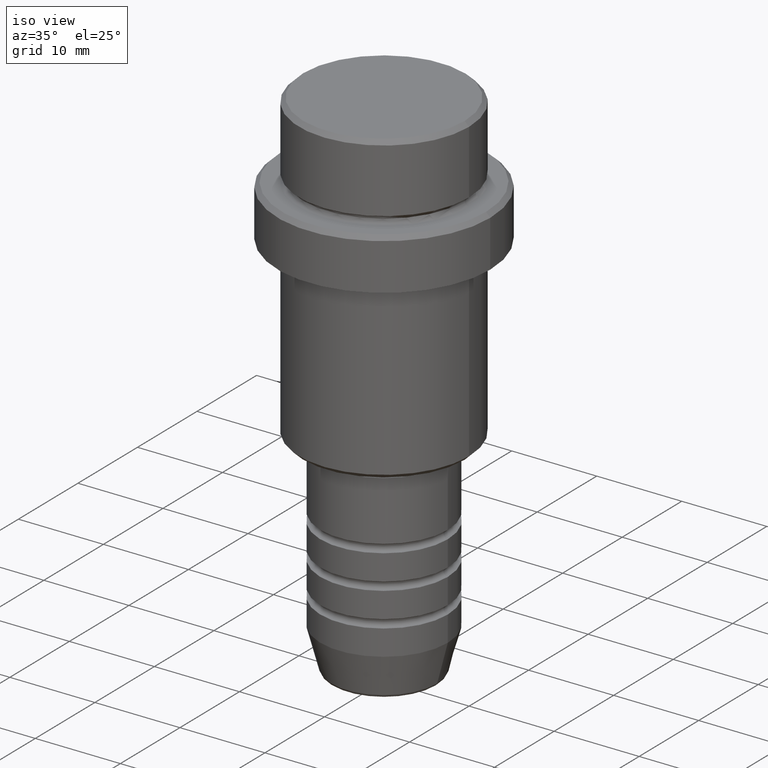
[diagram: clean part render]
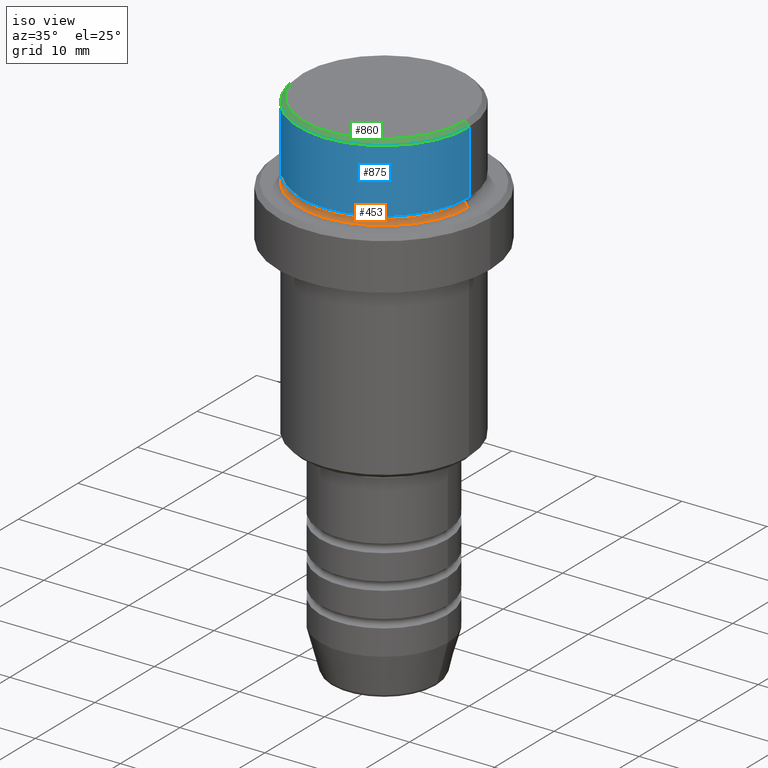
[diagram: same view with three faces highlighted in distinct colors, each labeled with its STEP entity id]
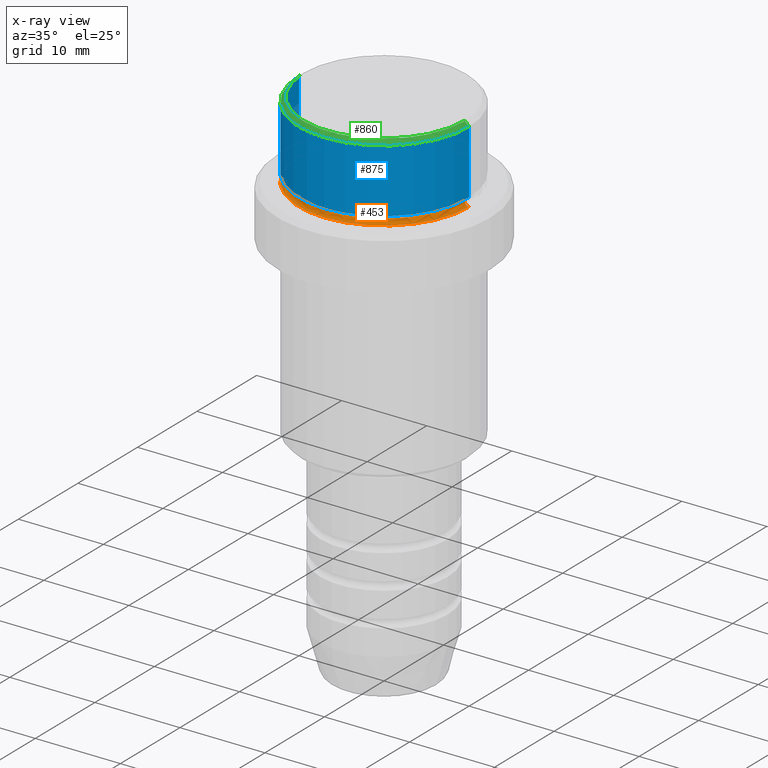
[diagram: x-ray of the same camera — body ghosted, the three highlighted faces saturated]
A machine part, iso view with three faces highlighted in distinct colors.
The next image is the same camera in x-ray (body ghosted, the three faces saturated) — at least one of them is partly hidden behind the body in this view.
Their STEP definitions:

[orange] entity #453 — the highlighted toroidal blend (fillet) surface has major radius 10 mm and minor (blend) radius 0.5 mm.
#1 = CARTESIAN_POINT ( 'NONE',  ( 9.499999999999994671, 0.000000000000000000, -8.500000000000000000 ) ) ;
#8 = DIRECTION ( 'NONE',  ( -0.000000000000000000, -0.000000000000000000, 1.000000000000000000 ) ) ;
#26 = ORIENTED_EDGE ( 'NONE', *, *, #714, .F. ) ;
#55 = CIRCLE ( 'NONE', #1041, 0.5000000000000004441 ) ;
#83 = DIRECTION ( 'NONE',  ( 1.224646799147353207E-16, 1.000000000000000000, 0.000000000000000000 ) ) ;
#88 = FACE_OUTER_BOUND ( 'NONE', #518, .T. ) ;
#105 = CARTESIAN_POINT ( 'NONE',  ( 0.000000000000000000, 0.000000000000000000, -8.500000000000000000 ) ) ;
#161 = CARTESIAN_POINT ( 'NONE',  ( -9.999999999999994671, 1.224646799147352665E-15, -9.000000000000001776 ) ) ;
#181 = CIRCLE ( 'NONE', #1089, 9.999999999999994671 ) ;
#213 = VERTEX_POINT ( 'NONE', #569 ) ;
#266 = VERTEX_POINT ( 'NONE', #161 ) ;
#283 = CARTESIAN_POINT ( 'NONE',  ( -9.999999999999994671, 1.224646799147352665E-15, -8.500000000000000000 ) ) ;
#337 = ORIENTED_EDGE ( 'NONE', *, *, #1265, .F. ) ;
#346 = DIRECTION ( 'NONE',  ( 0.000000000000000000, 0.000000000000000000, -1.000000000000000000 ) ) ;
#384 = ORIENTED_EDGE ( 'NONE', *, *, #1148, .F. ) ;
#453 = ADVANCED_FACE ( 'NONE', ( #88 ), #1320, .F. ) ;
#518 = EDGE_LOOP ( 'NONE', ( #384, #1321, #26, #337 ) ) ;
#521 = CARTESIAN_POINT ( 'NONE',  ( 9.999999999999994671, 0.000000000000000000, -8.500000000000000000 ) ) ;
#569 = CARTESIAN_POINT ( 'NONE',  ( 9.999999999999994671, 0.000000000000000000, -9.000000000000001776 ) ) ;
#586 = CARTESIAN_POINT ( 'NONE',  ( 0.000000000000000000, 0.000000000000000000, -9.000000000000001776 ) ) ;
#600 = DIRECTION ( 'NONE',  ( 1.000000000000000000, 0.000000000000000000, 0.000000000000000000 ) ) ;
#653 = VERTEX_POINT ( 'NONE', #795 ) ;
#713 = CARTESIAN_POINT ( 'NONE',  ( 0.000000000000000000, 0.000000000000000000, -8.500000000000000000 ) ) ;
#714 = EDGE_CURVE ( 'NONE', #213, #266, #181, .T. ) ;
#743 = DIRECTION ( 'NONE',  ( 0.000000000000000000, 0.000000000000000000, -1.000000000000000000 ) ) ;
#768 = DIRECTION ( 'NONE',  ( 1.000000000000000000, 0.000000000000000000, 0.000000000000000000 ) ) ;
#795 = CARTESIAN_POINT ( 'NONE',  ( -9.499999999999994671, 1.194030629168668681E-15, -8.500000000000000000 ) ) ;
#933 = EDGE_CURVE ( 'NONE', #653, #266, #55, .T. ) ;
#964 = VERTEX_POINT ( 'NONE', #1 ) ;
#978 = AXIS2_PLACEMENT_3D ( 'NONE', #105, #8, #768 ) ;
#1041 = AXIS2_PLACEMENT_3D ( 'NONE', #283, #83, #1279 ) ;
#1089 = AXIS2_PLACEMENT_3D ( 'NONE', #586, #346, #1347 ) ;
#1148 = EDGE_CURVE ( 'NONE', #653, #964, #1177, .T. ) ;
#1174 = CIRCLE ( 'NONE', #1289, 0.5000000000000004441 ) ;
#1177 = CIRCLE ( 'NONE', #1353, 9.499999999999994671 ) ;
#1178 = DIRECTION ( 'NONE',  ( 0.000000000000000000, -1.000000000000000000, 0.000000000000000000 ) ) ;
#1265 = EDGE_CURVE ( 'NONE', #964, #213, #1174, .T. ) ;
#1279 = DIRECTION ( 'NONE',  ( -1.000000000000000000, 1.224646799147353454E-16, 0.000000000000000000 ) ) ;
#1289 = AXIS2_PLACEMENT_3D ( 'NONE', #521, #1178, #743 ) ;
#1320 = TOROIDAL_SURFACE ( 'NONE', #978, 9.999999999999994671, 0.5000000000000000000 ) ;
#1321 = ORIENTED_EDGE ( 'NONE', *, *, #933, .T. ) ;
#1347 = DIRECTION ( 'NONE',  ( 1.000000000000000000, 0.000000000000000000, 0.000000000000000000 ) ) ;
#1353 = AXIS2_PLACEMENT_3D ( 'NONE', #713, #1367, #600 ) ;
#1367 = DIRECTION ( 'NONE',  ( -0.000000000000000000, -0.000000000000000000, 1.000000000000000000 ) ) ;

[blue] entity #875 — the highlighted cylindrical surface (partial cylindrical patch) has radius 10 mm, axis along (-0, -0, 1).
#93 = ORIENTED_EDGE ( 'NONE', *, *, #694, .T. ) ;
#95 = VERTEX_POINT ( 'NONE', #473 ) ;
#112 = DIRECTION ( 'NONE',  ( 0.000000000000000000, 0.000000000000000000, -1.000000000000000000 ) ) ;
#123 = EDGE_CURVE ( 'NONE', #1313, #490, #1252, .T. ) ;
#135 = EDGE_CURVE ( 'NONE', #490, #1121, #919, .T. ) ;
#136 = DIRECTION ( 'NONE',  ( -0.000000000000000000, -0.000000000000000000, 1.000000000000000000 ) ) ;
#164 = ORIENTED_EDGE ( 'NONE', *, *, #123, .T. ) ;
#194 = DIRECTION ( 'NONE',  ( -0.000000000000000000, -0.000000000000000000, 1.000000000000000000 ) ) ;
#473 = CARTESIAN_POINT ( 'NONE',  ( -9.999999999999998224, 1.224646799147353059E-15, -0.5000000000000038858 ) ) ;
#490 = VERTEX_POINT ( 'NONE', #525 ) ;
#493 = ORIENTED_EDGE ( 'NONE', *, *, #135, .T. ) ;
#525 = CARTESIAN_POINT ( 'NONE',  ( 9.999999999999998224, 0.000000000000000000, -7.999999999999998224 ) ) ;
#579 = CARTESIAN_POINT ( 'NONE',  ( 0.000000000000000000, 0.000000000000000000, -7.999999999999998224 ) ) ;
#624 = EDGE_LOOP ( 'NONE', ( #1282, #164, #493, #93 ) ) ;
#635 = VECTOR ( 'NONE', #811, 1000.000000000000000 ) ;
#688 = DIRECTION ( 'NONE',  ( -0.000000000000000000, -0.000000000000000000, 1.000000000000000000 ) ) ;
#694 = EDGE_CURVE ( 'NONE', #1121, #95, #995, .T. ) ;
#773 = FACE_OUTER_BOUND ( 'NONE', #624, .T. ) ;
#800 = AXIS2_PLACEMENT_3D ( 'NONE', #579, #688, #817 ) ;
#809 = LINE ( 'NONE', #1239, #1042 ) ;
#811 = DIRECTION ( 'NONE',  ( -0.000000000000000000, -0.000000000000000000, 1.000000000000000000 ) ) ;
#817 = DIRECTION ( 'NONE',  ( 1.000000000000000000, 0.000000000000000000, 0.000000000000000000 ) ) ;
#874 = DIRECTION ( 'NONE',  ( 1.000000000000000000, 0.000000000000000000, 0.000000000000000000 ) ) ;
#875 = ADVANCED_FACE ( 'NONE', ( #773 ), #1194, .T. ) ;
#898 = CARTESIAN_POINT ( 'NONE',  ( 0.000000000000000000, 0.000000000000000000, -0.5000000000000038858 ) ) ;
#919 = LINE ( 'NONE', #1339, #635 ) ;
#995 = CIRCLE ( 'NONE', #1153, 9.999999999999998224 ) ;
#1020 = AXIS2_PLACEMENT_3D ( 'NONE', #1200, #194, #874 ) ;
#1038 = EDGE_CURVE ( 'NONE', #1313, #95, #809, .T. ) ;
#1042 = VECTOR ( 'NONE', #136, 1000.000000000000000 ) ;
#1054 = CARTESIAN_POINT ( 'NONE',  ( -9.999999999999998224, 1.224646799147353059E-15, -7.999999999999998224 ) ) ;
#1121 = VERTEX_POINT ( 'NONE', #1136 ) ;
#1136 = CARTESIAN_POINT ( 'NONE',  ( 9.999999999999998224, 0.000000000000000000, -0.5000000000000038858 ) ) ;
#1153 = AXIS2_PLACEMENT_3D ( 'NONE', #898, #112, #1337 ) ;
#1194 = CYLINDRICAL_SURFACE ( 'NONE', #1020, 9.999999999999998224 ) ;
#1200 = CARTESIAN_POINT ( 'NONE',  ( 0.000000000000000000, 0.000000000000000000, 0.000000000000000000 ) ) ;
#1239 = CARTESIAN_POINT ( 'NONE',  ( -9.999999999999998224, 1.224646799147353059E-15, 0.000000000000000000 ) ) ;
#1252 = CIRCLE ( 'NONE', #800, 9.999999999999998224 ) ;
#1282 = ORIENTED_EDGE ( 'NONE', *, *, #1038, .F. ) ;
#1313 = VERTEX_POINT ( 'NONE', #1054 ) ;
#1337 = DIRECTION ( 'NONE',  ( 1.000000000000000000, 0.000000000000000000, 0.000000000000000000 ) ) ;
#1339 = CARTESIAN_POINT ( 'NONE',  ( 9.999999999999998224, 0.000000000000000000, 0.000000000000000000 ) ) ;

[green] entity #860 — the highlighted conical surface has half-angle 45 deg.
#52 = DIRECTION ( 'NONE',  ( 1.000000000000000000, 0.000000000000000000, 0.000000000000000000 ) ) ;
#74 = EDGE_CURVE ( 'NONE', #1268, #95, #645, .T. ) ;
#90 = CARTESIAN_POINT ( 'NONE',  ( -9.499999999999994671, 0.000000000000000000, 0.000000000000000000 ) ) ;
#95 = VERTEX_POINT ( 'NONE', #473 ) ;
#112 = DIRECTION ( 'NONE',  ( 0.000000000000000000, 0.000000000000000000, -1.000000000000000000 ) ) ;
#148 = CARTESIAN_POINT ( 'NONE',  ( 9.499999999999994671, 1.194030629168669075E-15, 0.000000000000000000 ) ) ;
#172 = DIRECTION ( 'NONE',  ( -1.000000000000000000, 0.000000000000000000, 0.000000000000000000 ) ) ;
#226 = AXIS2_PLACEMENT_3D ( 'NONE', #469, #838, #52 ) ;
#274 = ORIENTED_EDGE ( 'NONE', *, *, #446, .F. ) ;
#437 = CONICAL_SURFACE ( 'NONE', #630, 9.499999999999994671, 0.7853981633974482790 ) ;
#440 = VECTOR ( 'NONE', #526, 1000.000000000000114 ) ;
#446 = EDGE_CURVE ( 'NONE', #1139, #1121, #761, .T. ) ;
#469 = CARTESIAN_POINT ( 'NONE',  ( 0.000000000000000000, 0.000000000000000000, 0.000000000000000000 ) ) ;
#473 = CARTESIAN_POINT ( 'NONE',  ( -9.999999999999998224, 1.224646799147353059E-15, -0.5000000000000038858 ) ) ;
#509 = VECTOR ( 'NONE', #968, 1000.000000000000114 ) ;
#526 = DIRECTION ( 'NONE',  ( -0.7071067811865474617, 0.000000000000000000, -0.7071067811865474617 ) ) ;
#543 = ORIENTED_EDGE ( 'NONE', *, *, #74, .T. ) ;
#551 = CARTESIAN_POINT ( 'NONE',  ( 9.499999999999994671, 1.163414459189984894E-15, 0.000000000000000000 ) ) ;
#605 = FACE_OUTER_BOUND ( 'NONE', #870, .T. ) ;
#613 = DIRECTION ( 'NONE',  ( 0.000000000000000000, 0.000000000000000000, -1.000000000000000000 ) ) ;
#620 = CARTESIAN_POINT ( 'NONE',  ( 0.000000000000000000, 0.000000000000000000, 0.000000000000000000 ) ) ;
#630 = AXIS2_PLACEMENT_3D ( 'NONE', #620, #613, #172 ) ;
#645 = LINE ( 'NONE', #90, #440 ) ;
#694 = EDGE_CURVE ( 'NONE', #1121, #95, #995, .T. ) ;
#761 = LINE ( 'NONE', #551, #509 ) ;
#838 = DIRECTION ( 'NONE',  ( -0.000000000000000000, -0.000000000000000000, 1.000000000000000000 ) ) ;
#860 = ADVANCED_FACE ( 'NONE', ( #605 ), #437, .T. ) ;
#863 = CIRCLE ( 'NONE', #226, 9.499999999999994671 ) ;
#870 = EDGE_LOOP ( 'NONE', ( #274, #1191, #543, #1246 ) ) ;
#898 = CARTESIAN_POINT ( 'NONE',  ( 0.000000000000000000, 0.000000000000000000, -0.5000000000000038858 ) ) ;
#966 = CARTESIAN_POINT ( 'NONE',  ( -9.499999999999994671, 0.000000000000000000, 0.000000000000000000 ) ) ;
#968 = DIRECTION ( 'NONE',  ( 0.7071067811865474617, 8.659560562354932858E-17, -0.7071067811865474617 ) ) ;
#995 = CIRCLE ( 'NONE', #1153, 9.999999999999998224 ) ;
#1121 = VERTEX_POINT ( 'NONE', #1136 ) ;
#1136 = CARTESIAN_POINT ( 'NONE',  ( 9.999999999999998224, 0.000000000000000000, -0.5000000000000038858 ) ) ;
#1139 = VERTEX_POINT ( 'NONE', #148 ) ;
#1153 = AXIS2_PLACEMENT_3D ( 'NONE', #898, #112, #1337 ) ;
#1191 = ORIENTED_EDGE ( 'NONE', *, *, #1223, .F. ) ;
#1223 = EDGE_CURVE ( 'NONE', #1268, #1139, #863, .T. ) ;
#1246 = ORIENTED_EDGE ( 'NONE', *, *, #694, .F. ) ;
#1268 = VERTEX_POINT ( 'NONE', #966 ) ;
#1337 = DIRECTION ( 'NONE',  ( 1.000000000000000000, 0.000000000000000000, 0.000000000000000000 ) ) ;